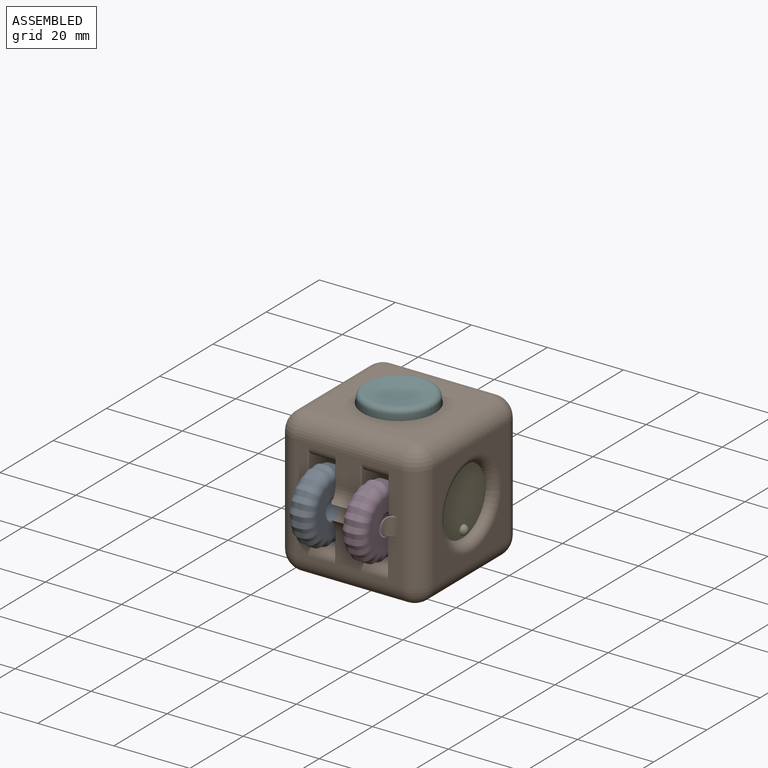
[diagram: assembled view]
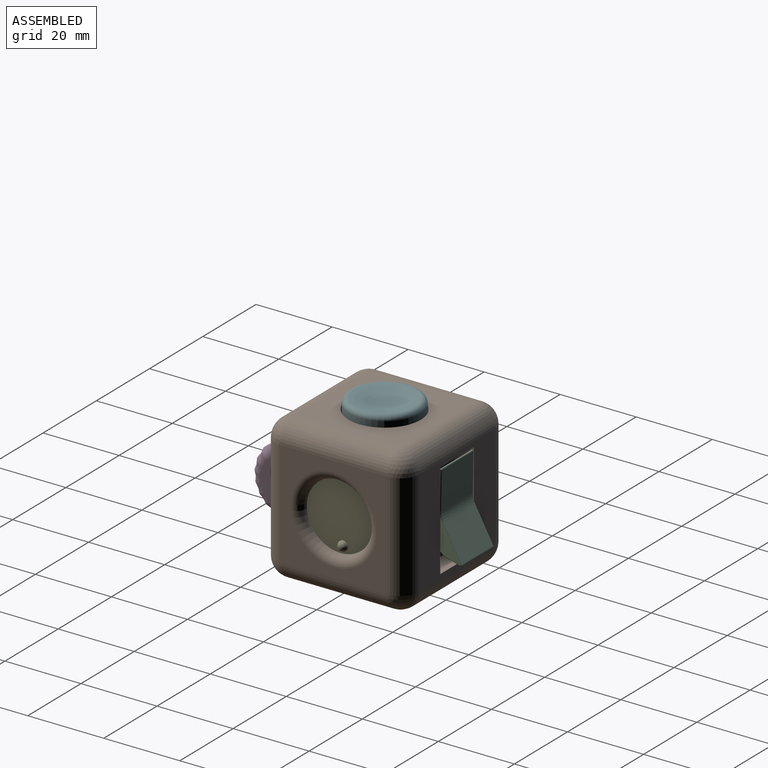
[diagram: assembled view, second angle]
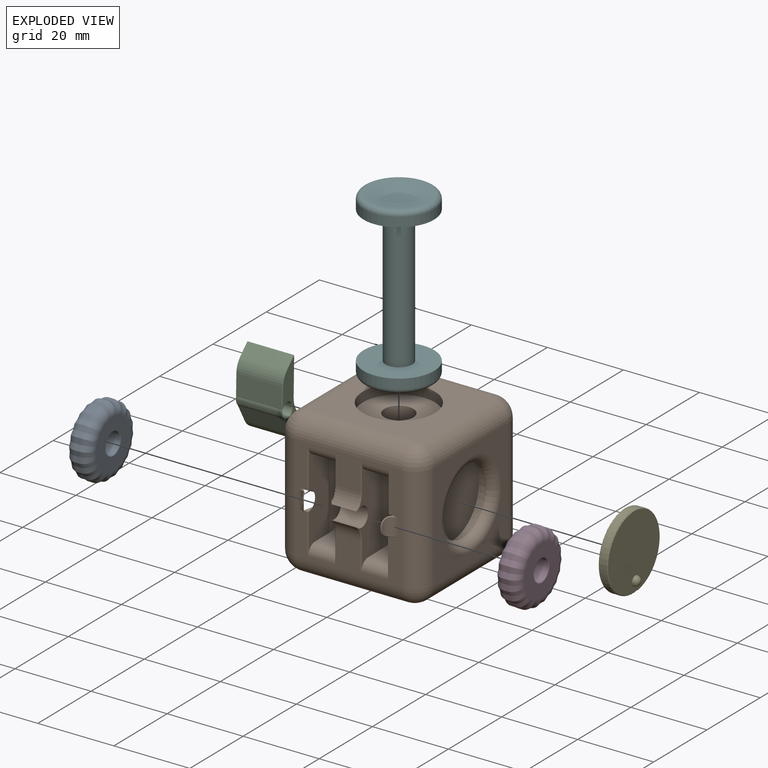
[diagram: exploded view]
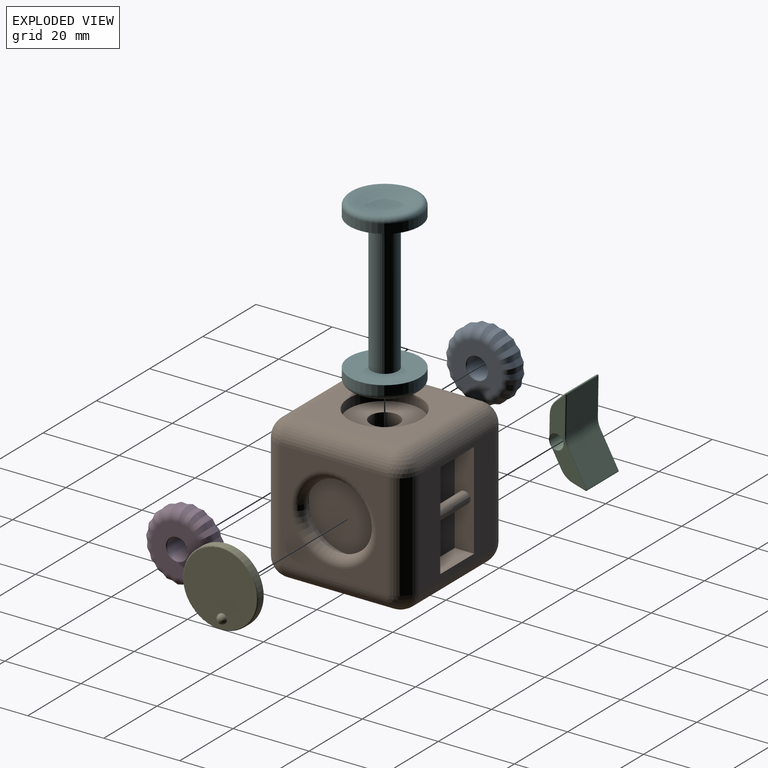
[diagram: exploded view, second angle]
ASSEMBLY  parts=6 mates=7
PART A: 125 faces, bbox 18.7x18.7x6.4 mm
  f0: plane 1.48x1.27mm, normal (0,1,0), area 1.9mm2, adj f1,f39,f69,f109
  f1: plane 1.41x1.27mm, normal (0.31,0.95,0), area 1.9mm2, adj f0,f2,f71,f111
  f2: plane 1.41x1.27mm, normal (-0.31,0.95,0), area 1.9mm2, adj f1,f3,f73,f113
  f3: plane 1.48x1.27mm, normal (0,1,0), area 1.9mm2, adj f2,f4,f75,f115
  f4: plane 1.27x1.2mm, normal (-0.59,0.81,0), area 1.9mm2, adj f3,f5,f77,f117
  f5: plane 1.41x1.27mm, normal (-0.31,0.95,0), area 1.9mm2, adj f4,f6,f79,f119
  f6: plane 1.27x1.2mm, normal (-0.81,0.59,0), area 1.9mm2, adj f5,f7,f81,f121
  f7: plane 1.27x1.2mm, normal (-0.59,0.81,0), area 1.9mm2, adj f6,f8,f83,f123
  f8: plane 1.41x1.27mm, normal (-0.95,0.31,0), area 1.9mm2, adj f7,f9,f84,f124
  f9: plane 1.27x1.2mm, normal (-0.81,0.59,0), area 1.9mm2, adj f8,f10,f82,f122
  f10: plane 1.48x1.27mm, normal (-1,0,0), area 1.9mm2, adj f9,f11,f80,f120
  f11: plane 1.41x1.27mm, normal (-0.95,0.31,0), area 1.9mm2, adj f10,f12,f78,f118
  f12: plane 1.41x1.27mm, normal (-0.95,-0.31,0), area 1.9mm2, adj f11,f13,f76,f116
  f13: plane 1.48x1.27mm, normal (-1,0,0), area 1.9mm2, adj f12,f14,f74,f114
  f14: plane 1.27x1.2mm, normal (-0.81,-0.59,0), area 1.9mm2, adj f13,f15,f72,f112
  f15: plane 1.41x1.27mm, normal (-0.95,-0.31,0), area 1.9mm2, adj f14,f16,f70,f110
  f16: plane 1.27x1.2mm, normal (-0.59,-0.81,0), area 1.9mm2, adj f15,f17,f68,f108
  f17: plane 1.27x1.2mm, normal (-0.81,-0.59,0), area 1.9mm2, adj f16,f18,f66,f106
  f18: plane 1.41x1.27mm, normal (-0.31,-0.95,0), area 1.9mm2, adj f17,f19,f64,f104
  f19: plane 1.27x1.2mm, normal (-0.59,-0.81,0), area 1.9mm2, adj f18,f20,f62,f102
  f20: plane 1.48x1.27mm, normal (0,-1,0), area 1.9mm2, adj f19,f21,f60,f100
  f21: plane 1.41x1.27mm, normal (-0.31,-0.95,0), area 1.9mm2, adj f20,f22,f58,f98
  f22: plane 1.41x1.27mm, normal (0.31,-0.95,0), area 1.9mm2, adj f21,f23,f56,f96
  f23: plane 1.48x1.27mm, normal (0,-1,0), area 1.9mm2, adj f22,f24,f54,f94
  f24: plane 1.27x1.2mm, normal (0.59,-0.81,0), area 1.9mm2, adj f23,f25,f52,f92
  f25: plane 1.41x1.27mm, normal (0.31,-0.95,0), area 1.9mm2, adj f24,f26,f50,f90
  f26: plane 1.27x1.2mm, normal (0.81,-0.59,0), area 1.9mm2, adj f25,f27,f48,f88
  f27: plane 1.27x1.2mm, normal (0.59,-0.81,0), area 1.9mm2, adj f26,f28,f46,f86
  f28: plane 1.41x1.27mm, normal (0.95,-0.31,0), area 1.9mm2, adj f27,f29,f45,f85
  f29: plane 1.27x1.2mm, normal (0.81,-0.59,0), area 1.9mm2, adj f28,f30,f47,f87
  f30: plane 1.48x1.27mm, normal (1,0,0), area 1.9mm2, adj f29,f31,f49,f89
  f31: plane 1.41x1.27mm, normal (0.95,-0.31,0), area 1.9mm2, adj f30,f32,f51,f91
  f32: plane 1.41x1.27mm, normal (0.95,0.31,0), area 1.9mm2, adj f31,f33,f53,f93
  f33: plane 1.48x1.27mm, normal (1,0,0), area 1.9mm2, adj f32,f34,f55,f95
  f34: plane 1.27x1.2mm, normal (0.81,0.59,0), area 1.9mm2, adj f33,f35,f57,f97
  f35: plane 1.41x1.27mm, normal (0.95,0.31,0), area 1.9mm2, adj f34,f36,f59,f99
  f36: plane 1.27x1.2mm, normal (0.59,0.81,0), area 1.9mm2, adj f35,f37,f61,f101
  f37: plane 1.27x1.2mm, normal (0.81,0.59,0), area 1.9mm2, adj f36,f38,f63,f103
  f38: plane 1.41x1.27mm, normal (0.31,0.95,0), area 1.9mm2, adj f37,f39,f65,f105
  f39: plane 1.27x1.2mm, normal (0.59,0.81,0), area 1.9mm2, adj f0,f38,f67,f107
  f40: cylinder r=2.74mm len=5.84mm, axis (0,0,-1), area 100.6mm2, adj f43,f44
  f41: plane 13.35x13.35mm, normal (0,0,1), area 106.1mm2, adj f44,f85,f86,f87,f88,f89,f90,f91
  f42: plane 13.35x13.35mm, normal (0,0,-1), area 106.1mm2, adj f43,f45,f46,f47,f48,f49,f50,f51
  f43: torus R=2.99mm, axis (0,0,1), area 7.1mm2, adj f40,f42
  f44: torus R=2.99mm, axis (0,0,1), area 7.1mm2, adj f40,f41
  f45: cylinder r=2.54mm len=3mm, axis (0.31,0.95,0), area 5.3mm2, adj f28,f42,f46,f47
  f46: cylinder r=2.54mm len=3.16mm, axis (0.81,0.59,0), area 5.3mm2, adj f27,f42,f45,f48
  f47: cylinder r=2.54mm len=3.16mm, axis (0.59,0.81,0), area 5.3mm2, adj f29,f42,f45,f49
  f48: cylinder r=2.54mm len=3.16mm, axis (0.59,0.81,0), area 5.3mm2, adj f26,f42,f46,f50
  f49: cylinder r=2.54mm len=2.54mm, axis (0,1,0), area 5.3mm2, adj f30,f42,f47,f51
  f50: cylinder r=2.54mm len=3mm, axis (0.95,0.31,0), area 5.3mm2, adj f25,f42,f48,f52
  f51: cylinder r=2.54mm len=3mm, axis (0.31,0.95,0), area 5.3mm2, adj f31,f42,f49,f53
  f52: cylinder r=2.54mm len=3.16mm, axis (0.81,0.59,0), area 5.3mm2, adj f24,f42,f50,f54
  f53: cylinder r=2.54mm len=3mm, axis (-0.31,0.95,0), area 5.3mm2, adj f32,f42,f51,f55
  f54: cylinder r=2.54mm len=2.54mm, axis (1,0,0), area 5.3mm2, adj f23,f42,f52,f56
  f55: cylinder r=2.54mm len=2.54mm, axis (0,1,0), area 5.3mm2, adj f33,f42,f53,f57
  f56: cylinder r=2.54mm len=3mm, axis (0.95,0.31,0), area 5.3mm2, adj f22,f42,f54,f58
  f57: cylinder r=2.54mm len=3.16mm, axis (-0.59,0.81,0), area 5.3mm2, adj f34,f42,f55,f59
  f58: cylinder r=2.54mm len=3mm, axis (0.95,-0.31,0), area 5.3mm2, adj f21,f42,f56,f60
  f59: cylinder r=2.54mm len=3mm, axis (-0.31,0.95,0), area 5.3mm2, adj f35,f42,f57,f61
  f60: cylinder r=2.54mm len=2.54mm, axis (1,0,0), area 5.3mm2, adj f20,f42,f58,f62
  f61: cylinder r=2.54mm len=3.16mm, axis (-0.81,0.59,0), area 5.3mm2, adj f36,f42,f59,f63
  f62: cylinder r=2.54mm len=3.16mm, axis (0.81,-0.59,0), area 5.3mm2, adj f19,f42,f60,f64
  f63: cylinder r=2.54mm len=3.16mm, axis (-0.59,0.81,0), area 5.3mm2, adj f37,f42,f61,f65
  f64: cylinder r=2.54mm len=3mm, axis (0.95,-0.31,0), area 5.3mm2, adj f18,f42,f62,f66
  f65: cylinder r=2.54mm len=3mm, axis (-0.95,0.31,0), area 5.3mm2, adj f38,f42,f63,f67
  f66: cylinder r=2.54mm len=3.16mm, axis (0.59,-0.81,0), area 5.3mm2, adj f17,f42,f64,f68
  f67: cylinder r=2.54mm len=3.16mm, axis (-0.81,0.59,0), area 5.3mm2, adj f39,f42,f65,f69
  f68: cylinder r=2.54mm len=3.16mm, axis (0.81,-0.59,0), area 5.3mm2, adj f16,f42,f66,f70
  f69: cylinder r=2.54mm len=2.54mm, axis (-1,0,0), area 5.3mm2, adj f0,f42,f67,f71
  f70: cylinder r=2.54mm len=3mm, axis (0.31,-0.95,0), area 5.3mm2, adj f15,f42,f68,f72
  f71: cylinder r=2.54mm len=3mm, axis (-0.95,0.31,0), area 5.3mm2, adj f1,f42,f69,f73
  f72: cylinder r=2.54mm len=3.16mm, axis (0.59,-0.81,0), area 5.3mm2, adj f14,f42,f70,f74
  f73: cylinder r=2.54mm len=3mm, axis (-0.95,-0.31,0), area 5.3mm2, adj f2,f42,f71,f75
  f74: cylinder r=2.54mm len=2.54mm, axis (0,-1,0), area 5.3mm2, adj f13,f42,f72,f76
  f75: cylinder r=2.54mm len=2.54mm, axis (-1,0,0), area 5.3mm2, adj f3,f42,f73,f77
  f76: cylinder r=2.54mm len=3mm, axis (0.31,-0.95,0), area 5.3mm2, adj f12,f42,f74,f78
  f77: cylinder r=2.54mm len=3.16mm, axis (-0.81,-0.59,0), area 5.3mm2, adj f4,f42,f75,f79
  f78: cylinder r=2.54mm len=3mm, axis (-0.31,-0.95,0), area 5.3mm2, adj f11,f42,f76,f80
  f79: cylinder r=2.54mm len=3mm, axis (-0.95,-0.31,0), area 5.3mm2, adj f5,f42,f77,f81
  f80: cylinder r=2.54mm len=2.54mm, axis (0,-1,0), area 5.3mm2, adj f10,f42,f78,f82
  f81: cylinder r=2.54mm len=3.16mm, axis (-0.59,-0.81,0), area 5.3mm2, adj f6,f42,f79,f83
  f82: cylinder r=2.54mm len=3.16mm, axis (-0.59,-0.81,0), area 5.3mm2, adj f9,f42,f80,f84
  f83: cylinder r=2.54mm len=3.16mm, axis (-0.81,-0.59,0), area 5.3mm2, adj f7,f42,f81,f84
  f84: cylinder r=2.54mm len=3mm, axis (-0.31,-0.95,0), area 5.3mm2, adj f8,f42,f82,f83
  f85: cylinder r=2.54mm len=3mm, axis (-0.31,-0.95,0), area 5.3mm2, adj f28,f41,f86,f87
  f86: cylinder r=2.54mm len=3.16mm, axis (-0.81,-0.59,0), area 5.3mm2, adj f27,f41,f85,f88
  f87: cylinder r=2.54mm len=3.16mm, axis (-0.59,-0.81,0), area 5.3mm2, adj f29,f41,f85,f89
  f88: cylinder r=2.54mm len=3.16mm, axis (-0.59,-0.81,0), area 5.3mm2, adj f26,f41,f86,f90
  f89: cylinder r=2.54mm len=2.54mm, axis (0,-1,0), area 5.3mm2, adj f30,f41,f87,f91
  f90: cylinder r=2.54mm len=3mm, axis (-0.95,-0.31,0), area 5.3mm2, adj f25,f41,f88,f92
  f91: cylinder r=2.54mm len=3mm, axis (-0.31,-0.95,0), area 5.3mm2, adj f31,f41,f89,f93
  f92: cylinder r=2.54mm len=3.16mm, axis (-0.81,-0.59,0), area 5.3mm2, adj f24,f41,f90,f94
  f93: cylinder r=2.54mm len=3mm, axis (0.31,-0.95,0), area 5.3mm2, adj f32,f41,f91,f95
  f94: cylinder r=2.54mm len=2.54mm, axis (-1,0,0), area 5.3mm2, adj f23,f41,f92,f96
  f95: cylinder r=2.54mm len=2.54mm, axis (0,-1,0), area 5.3mm2, adj f33,f41,f93,f97
  f96: cylinder r=2.54mm len=3mm, axis (-0.95,-0.31,0), area 5.3mm2, adj f22,f41,f94,f98
  f97: cylinder r=2.54mm len=3.16mm, axis (0.59,-0.81,0), area 5.3mm2, adj f34,f41,f95,f99
  f98: cylinder r=2.54mm len=3mm, axis (-0.95,0.31,0), area 5.3mm2, adj f21,f41,f96,f100
  f99: cylinder r=2.54mm len=3mm, axis (0.31,-0.95,0), area 5.3mm2, adj f35,f41,f97,f101
  f100: cylinder r=2.54mm len=2.54mm, axis (-1,0,0), area 5.3mm2, adj f20,f41,f98,f102
  f101: cylinder r=2.54mm len=3.16mm, axis (0.81,-0.59,0), area 5.3mm2, adj f36,f41,f99,f103
  f102: cylinder r=2.54mm len=3.16mm, axis (-0.81,0.59,0), area 5.3mm2, adj f19,f41,f100,f104
  f103: cylinder r=2.54mm len=3.16mm, axis (0.59,-0.81,0), area 5.3mm2, adj f37,f41,f101,f105
  f104: cylinder r=2.54mm len=3mm, axis (-0.95,0.31,0), area 5.3mm2, adj f18,f41,f102,f106
  f105: cylinder r=2.54mm len=3mm, axis (0.95,-0.31,0), area 5.3mm2, adj f38,f41,f103,f107
  f106: cylinder r=2.54mm len=3.16mm, axis (-0.59,0.81,0), area 5.3mm2, adj f17,f41,f104,f108
  f107: cylinder r=2.54mm len=3.16mm, axis (0.81,-0.59,0), area 5.3mm2, adj f39,f41,f105,f109
  f108: cylinder r=2.54mm len=3.16mm, axis (-0.81,0.59,0), area 5.3mm2, adj f16,f41,f106,f110
  f109: cylinder r=2.54mm len=2.54mm, axis (1,0,0), area 5.3mm2, adj f0,f41,f107,f111
  f110: cylinder r=2.54mm len=3mm, axis (-0.31,0.95,0), area 5.3mm2, adj f15,f41,f108,f112
  f111: cylinder r=2.54mm len=3mm, axis (0.95,-0.31,0), area 5.3mm2, adj f1,f41,f109,f113
  f112: cylinder r=2.54mm len=3.16mm, axis (-0.59,0.81,0), area 5.3mm2, adj f14,f41,f110,f114
  f113: cylinder r=2.54mm len=3mm, axis (0.95,0.31,0), area 5.3mm2, adj f2,f41,f111,f115
  f114: cylinder r=2.54mm len=2.54mm, axis (0,1,0), area 5.3mm2, adj f13,f41,f112,f116
  f115: cylinder r=2.54mm len=2.54mm, axis (1,0,0), area 5.3mm2, adj f3,f41,f113,f117
  f116: cylinder r=2.54mm len=3mm, axis (-0.31,0.95,0), area 5.3mm2, adj f12,f41,f114,f118
  f117: cylinder r=2.54mm len=3.16mm, axis (0.81,0.59,0), area 5.3mm2, adj f4,f41,f115,f119
  f118: cylinder r=2.54mm len=3mm, axis (0.31,0.95,0), area 5.3mm2, adj f11,f41,f116,f120
  f119: cylinder r=2.54mm len=3mm, axis (0.95,0.31,0), area 5.3mm2, adj f5,f41,f117,f121
  f120: cylinder r=2.54mm len=2.54mm, axis (0,1,0), area 5.3mm2, adj f10,f41,f118,f122
  f121: cylinder r=2.54mm len=3.16mm, axis (0.59,0.81,0), area 5.3mm2, adj f6,f41,f119,f123
  f122: cylinder r=2.54mm len=3.16mm, axis (0.59,0.81,0), area 5.3mm2, adj f9,f41,f120,f124
  f123: cylinder r=2.54mm len=3.16mm, axis (0.81,0.59,0), area 5.3mm2, adj f7,f41,f121,f124
  f124: cylinder r=2.54mm len=3mm, axis (0.31,0.95,0), area 5.3mm2, adj f8,f41,f122,f123
PART B: 91 faces, bbox 48.3x50.8x48.3 mm
  f0: plane 27.95x9.9mm, normal (-1,0,0), area 142.9mm2, adj f1,f2,f3,f4
  f1: cylinder r=5.08mm len=27.94mm, axis (0,1,0), area 219.9mm2, adj f0,f2,f5,f6,f7,f8
  f2: bspline ~30.1x21.3mm, area 120.8mm2, adj f0,f1,f3,f5,f9
  f3: cylinder r=5.08mm len=27.94mm, axis (0,-1,0), area 219.9mm2, adj f0,f2,f5,f10,f11,f12
  f4: cylinder r=5.08mm len=27.94mm, axis (0,0,1), area 223mm2, adj f0,f6,f12,f13
  f5: plane 27.96x9.91mm, normal (-1,0,0), area 142.9mm2, adj f1,f2,f3,f14
  f6: sphere r=5.08mm, area 40.5mm2, adj f1,f4,f15
  f7: plane 27.94x27.94mm, normal (0,0,1), area 495.6mm2, adj f1,f15,f16,f17,f18
  f8: sphere r=5.08mm, area 40.5mm2, adj f1,f14,f17
  f9: bspline ~27.04x18.21mm, area 339.7mm2, adj f2,f19
  f10: sphere r=5.08mm, area 55.3mm2, adj f3,f14,f20
  f11: plane 27.94x27.94mm, normal (0,0,-1), area 495.6mm2, adj f3,f20,f21,f22,f23
  f12: sphere r=5.08mm, area 40.5mm2, adj f3,f4,f22
  f13: plane 38.1x38.1mm, normal (0,-1,0), area 296.8mm2, adj f4,f15,f22,f24,f25,f26,f27,f28
  f14: cylinder r=5.08mm len=27.94mm, axis (0,0,-1), area 223mm2, adj f5,f8,f10,f45
  f15: cylinder r=5.08mm len=27.94mm, axis (-1,0,0), area 223mm2, adj f6,f7,f13,f46
  f16: cylinder r=9.53mm len=19.05mm, axis (0,0,1), area 152mm2, adj f7,f47
  f17: cylinder r=5.08mm len=27.94mm, axis (1,0,0), area 223mm2, adj f7,f8,f45,f48
  f18: cylinder r=5.08mm len=27.94mm, axis (0,-1,0), area 223mm2, adj f7,f46,f48,f49
  f19: plane 14.94x6.11mm, normal (-1,0,0), area 67.9mm2, adj f9
  f20: cylinder r=5.08mm len=27.94mm, axis (-1,0,0), area 223mm2, adj f10,f11,f45,f50
  f21: cylinder r=9.53mm len=19.05mm, axis (0,0,-1), area 152mm2, adj f11,f51
  f22: cylinder r=5.08mm len=27.94mm, axis (1,0,0), area 223mm2, adj f11,f12,f13,f52
  f23: cylinder r=5.08mm len=27.94mm, axis (0,1,0), area 223mm2, adj f11,f49,f50,f52
  f24: cylinder r=5.08mm len=27.94mm, axis (0,0,-1), area 223mm2, adj f13,f46,f49,f52
  f25: cylinder r=2.54mm len=7.49mm, axis (1,0,0), area 28.2mm2, adj f13,f26,f44,f53,f54,f55
  f26: cylinder r=0.25mm len=7.34mm, axis (0,0,-1), area 2.7mm2, adj f13,f25,f53,f56
  f27: cylinder r=5.08mm len=6.48mm, axis (1,0,0), area 27.7mm2, adj f13,f56,f57,f58
  f28: cylinder r=0.25mm len=7.34mm, axis (0,0,1), area 2.7mm2, adj f13,f29,f58,f59
  f29: cylinder r=2.54mm len=7.49mm, axis (1,0,0), area 28.2mm2, adj f13,f28,f30,f34,f59,f60
  f30: cylinder r=0.25mm len=10.49mm, axis (0,0,-1), area 4mm2, adj f13,f29,f31,f34
  f31: cylinder r=2.54mm len=5.08mm, axis (1,0,0), area 15.5mm2, adj f13,f30,f32,f34
  f32: bspline ~5.11x3.15mm, area 3.5mm2, adj f13,f31,f33
  f33: cylinder r=2.54mm len=4.54mm, axis (0,0,-1), area 8.5mm2, adj f13,f32
  f34: plane 24.93x7.62mm, normal (-1,0,0), area 149.8mm2, adj f13,f29,f30,f31,f35,f60,f61,f62
  f35: cylinder r=2.54mm len=7.24mm, axis (-1,0,0), area 28mm2, adj f13,f34,f36,f59,f62
  f36: cylinder r=0.25mm len=7.34mm, axis (0,0,1), area 2.7mm2, adj f13,f35,f59,f63
  f37: cylinder r=5.08mm len=6.48mm, axis (1,0,0), area 27.7mm2, adj f13,f57,f63,f64
  f38: cylinder r=0.25mm len=7.34mm, axis (0,0,-1), area 2.7mm2, adj f13,f39,f53,f64
  f39: cylinder r=2.54mm len=7.49mm, axis (-1,0,0), area 28.2mm2, adj f13,f38,f40,f53,f54,f65
  f40: cylinder r=0.25mm len=10.49mm, axis (0,0,1), area 4mm2, adj f13,f39,f41,f54
  f41: cylinder r=2.54mm len=5.08mm, axis (1,0,0), area 16.5mm2, adj f13,f40,f42,f44,f54
  f42: bspline ~5.11x3.15mm, area 3.5mm2, adj f13,f41,f43
  f43: cylinder r=2.54mm len=4.54mm, axis (0,0,1), area 8.5mm2, adj f13,f42
  f44: cylinder r=0.25mm len=10.49mm, axis (0,0,1), area 4mm2, adj f13,f25,f41,f54
  f45: plane 27.94x27.94mm, normal (0,1,0), area 458.1mm2, adj f14,f17,f20,f66,f67,f68,f69,f70
  f46: sphere r=5.08mm, area 40.5mm2, adj f15,f18,f24
  f47: plane 19.05x19.05mm, normal (0,0,1), area 239.4mm2, adj f16,f71
  f48: sphere r=5.08mm, area 25.8mm2, adj f17,f18,f66
  f49: plane 27.94x27.94mm, normal (1,0,0), area 379.1mm2, adj f18,f23,f24,f66,f72
  f50: sphere r=5.08mm, area 25.8mm2, adj f20,f23,f66
  f51: plane 19.05x19.05mm, normal (0,0,-1), area 239.4mm2, adj f21,f71
  f52: sphere r=5.08mm, area 40.5mm2, adj f22,f23,f24
  f53: plane 23.82x8.26mm, normal (-1,0,0), area 147mm2, adj f25,f26,f38,f39,f55,f56,f64,f65
  f54: plane 23.82x7.37mm, normal (1,0,0), area 147.4mm2, adj f25,f39,f40,f41,f44,f55,f65,f75
  f55: plane 6.99x5.08mm, normal (0,0,-1), area 35.5mm2, adj f25,f53,f54,f76
  f56: torus R=5.33mm, axis (-1,0,0), area 1.5mm2, adj f26,f27,f53,f77
  f57: cylinder r=2.54mm len=7.24mm, axis (1,0,0), area 83.7mm2, adj f27,f37,f58,f59,f63,f73,f77,f78
  f58: torus R=5.33mm, axis (-1,0,0), area 1.6mm2, adj f27,f28,f57,f59
  f59: plane 23.82x8.51mm, normal (1,0,0), area 149.5mm2, adj f28,f29,f35,f36,f57,f58,f60,f62
  f60: plane 6.99x5.08mm, normal (0,0,-1), area 35.5mm2, adj f29,f34,f59,f80
  f61: cylinder r=2.54mm len=20.96mm, axis (0,0,1), area 73.5mm2, adj f34,f80,f81,f82
  f62: plane 6.99x5.08mm, normal (0,0,1), area 35.5mm2, adj f34,f35,f59,f82
  f63: torus R=5.33mm, axis (-1,0,0), area 1.6mm2, adj f36,f37,f57,f59
  f64: torus R=5.33mm, axis (-1,0,0), area 1.5mm2, adj f37,f38,f53,f78
  f65: plane 6.99x5.08mm, normal (0,0,1), area 35.5mm2, adj f39,f53,f54,f83
  f66: cylinder r=5.08mm len=27.94mm, axis (0,0,1), area 223mm2, adj f45,f48,f49,f50
  f67: plane 25.4x5.08mm, normal (1,0,0), area 121.1mm2, adj f45,f68,f70,f84,f85
  f68: plane 12.7x5.08mm, normal (0,0,1), area 64.5mm2, adj f45,f67,f69,f85
  f69: plane 25.4x5.08mm, normal (-1,0,0), area 121.1mm2, adj f45,f68,f70,f84,f85
  f70: plane 12.7x5.08mm, normal (0,0,-1), area 64.5mm2, adj f45,f67,f69,f85
  f71: cylinder r=3.81mm len=33.02mm, axis (0,0,-1), area 790.5mm2, adj f47,f51
  f72: torus R=11.31mm, axis (1,0,0), area 227.3mm2, adj f49,f86
  f73: torus R=2.79mm, axis (-1,0,0), area 3.8mm2, adj f53,f57,f77,f78
  f74: cylinder r=2.54mm len=20.96mm, axis (0,0,1), area 73.5mm2, adj f53,f76,f83,f87
  f75: cylinder r=2.54mm len=20.96mm, axis (0,0,-1), area 73.5mm2, adj f54,f76,f83,f87
  f76: cylinder r=2.54mm len=6.99mm, axis (-1,0,0), area 17.7mm2, adj f55,f74,f75,f87
  f77: bspline ~1.26x0.89mm, area 0.2mm2, adj f56,f57,f73
  f78: bspline ~1.26x0.89mm, area 0.2mm2, adj f57,f64,f73
  f79: cylinder r=2.54mm len=20.96mm, axis (0,0,-1), area 73.5mm2, adj f59,f80,f81,f82
  f80: cylinder r=2.54mm len=6.99mm, axis (-1,0,0), area 17.7mm2, adj f60,f61,f79,f81
  f81: plane 15.88x1.91mm, normal (0,-1,0), area 30.2mm2, adj f61,f79,f80,f82
  f82: cylinder r=2.54mm len=6.99mm, axis (1,0,0), area 17.7mm2, adj f61,f62,f79,f81
  f83: cylinder r=2.54mm len=6.99mm, axis (1,0,0), area 17.7mm2, adj f65,f74,f75,f87
  f84: cylinder r=1.59mm len=12.7mm, axis (1,0,0), area 126.7mm2, adj f67,f69
  f85: plane 25.4x12.7mm, normal (0,1,0), area 322.6mm2, adj f67,f68,f69,f70
  f86: torus R=9.03mm, axis (-1,0,0), area 23.8mm2, adj f72,f88
  f87: plane 15.88x1.91mm, normal (0,-1,0), area 30.2mm2, adj f74,f75,f76,f83
  f88: plane 20.32x20.32mm, normal (-1,0,0), area 67.9mm2, adj f86,f89
  f89: cylinder r=10.16mm len=20.32mm, axis (1,0,0), area 162.1mm2, adj f88,f90
  f90: plane 20.32x20.32mm, normal (1,0,0), area 324.3mm2, adj f89
PART C: 50 faces, bbox 12.3x21.7x10.5 mm
  f0: plane 21.18x9.54mm, normal (1,0,0), area 63.8mm2, adj f13,f15,f16,f17,f18,f19,f20,f21
  f1: plane 21.18x9.54mm, normal (-1,0,0), area 63.8mm2, adj f23,f25,f26,f27,f28,f29,f30,f31
  f2: plane 11.79x9.75mm, normal (0,0,1), area 114.9mm2, adj f11,f20,f29,f38
  f3: plane 11.79x5.39mm, normal (0,0,-1), area 63.5mm2, adj f7,f16,f25,f48
  f4: cylinder r=1.84mm len=11.79mm, axis (1,0,0), area 14.5mm2, adj f7,f8,f12,f24
  f5: cylinder r=1.79mm len=11.79mm, axis (-1,0,0), area 132.4mm2, adj f13,f23
  f6: plane 11.79x2.45mm, normal (0,-0.71,-0.71), area 40.8mm2, adj f18,f27,f41,f48
  f7: cylinder r=1.84mm len=11.79mm, axis (-1,0,0), area 14.5mm2, adj f3,f4,f14,f22
  f8: plane 11.79x4.66mm, normal (0,0.5,-0.87), area 63.5mm2, adj f4,f15,f26,f45
  f9: plane 11.79x8.44mm, normal (0,-0.5,0.87), area 114.9mm2, adj f11,f19,f30,f32
  f10: plane 11.79x3.34mm, normal (0,0.97,-0.26), area 40.8mm2, adj f17,f28,f35,f45
  f11: cylinder r=5.08mm len=11.79mm, axis (-1,0,0), area 31.4mm2, adj f2,f9,f21,f31
  f12: torus R=1.59mm, axis (1,0,0), area 0.3mm2, adj f4,f13,f14,f15
  f13: torus R=2.04mm, axis (1,0,0), area 4.3mm2, adj f0,f5,f12,f14,f15,f16
  f14: torus R=1.59mm, axis (1,0,0), area 0.3mm2, adj f7,f12,f13,f16
  f15: cylinder r=0.25mm len=4.81mm, axis (0,-0.87,-0.5), area 2.1mm2, adj f0,f8,f12,f13,f44
  f16: cylinder r=0.25mm len=5.41mm, axis (0,1,0), area 2.1mm2, adj f0,f3,f13,f14,f47
  f17: cylinder r=0.25mm len=3.41mm, axis (0,-0.26,-0.97), area 1.4mm2, adj f0,f10,f37,f44
  f18: cylinder r=0.25mm len=2.63mm, axis (0,0.71,-0.71), area 1.4mm2, adj f0,f6,f40,f47
  f19: cylinder r=0.25mm len=8.57mm, axis (0,0.87,0.5), area 3.9mm2, adj f0,f9,f21,f36
  f20: cylinder r=0.25mm len=9.75mm, axis (0,-1,0), area 3.9mm2, adj f0,f2,f21,f39
  f21: torus R=5.33mm, axis (1,0,0), area 1.1mm2, adj f0,f11,f19,f20
  f22: torus R=1.59mm, axis (1,0,0), area 0.3mm2, adj f7,f23,f24,f25
  f23: torus R=2.04mm, axis (1,0,0), area 4.3mm2, adj f1,f5,f22,f24,f25,f26
  f24: torus R=1.59mm, axis (1,0,0), area 0.3mm2, adj f4,f22,f23,f26
  f25: cylinder r=0.25mm len=5.41mm, axis (0,-1,0), area 2.1mm2, adj f1,f3,f22,f23,f49
  f26: cylinder r=0.25mm len=4.81mm, axis (0,0.87,0.5), area 2.1mm2, adj f1,f8,f23,f24,f46
  f27: cylinder r=0.25mm len=2.63mm, axis (0,0.71,-0.71), area 1.4mm2, adj f1,f6,f43,f49
  f28: cylinder r=0.25mm len=3.41mm, axis (0,0.26,0.97), area 1.4mm2, adj f1,f10,f34,f46
  f29: cylinder r=0.25mm len=9.75mm, axis (0,1,0), area 3.9mm2, adj f1,f2,f31,f42
  f30: cylinder r=0.25mm len=8.57mm, axis (0,-0.87,-0.5), area 3.9mm2, adj f1,f9,f31,f33
  f31: torus R=5.33mm, axis (1,0,0), area 1.1mm2, adj f1,f11,f29,f30
  f32: cylinder r=5.08mm len=11.79mm, axis (-1,0,0), area 2.2mm2, adj f9,f33,f35,f36
  f33: torus R=4.83mm, axis (1,0,0), area 0.1mm2, adj f1,f30,f32,f34
  f34: sphere r=0.25mm, area 0.1mm2, adj f28,f33,f35
  f35: cylinder r=0.25mm len=11.79mm, axis (-1,0,0), area 6.9mm2, adj f10,f32,f34,f37
  f36: torus R=4.83mm, axis (1,0,0), area 0.1mm2, adj f0,f19,f32,f37
  f37: sphere r=0.25mm, area 0.1mm2, adj f17,f35,f36
  f38: cylinder r=5.08mm len=11.79mm, axis (1,0,0), area 2.2mm2, adj f2,f39,f41,f42
  f39: torus R=4.83mm, axis (1,0,0), area 0.1mm2, adj f0,f20,f38,f40
  f40: sphere r=0.25mm, area 0.1mm2, adj f18,f39,f41
  f41: cylinder r=0.25mm len=11.79mm, axis (1,0,0), area 6.9mm2, adj f6,f38,f40,f43
  f42: torus R=4.83mm, axis (1,0,0), area 0.1mm2, adj f1,f29,f38,f43
  f43: sphere r=0.25mm, area 0.1mm2, adj f27,f41,f42
  f44: torus R=4.83mm, axis (1,0,0), area 1.6mm2, adj f0,f15,f17,f45
  f45: cylinder r=5.08mm len=11.79mm, axis (-1,0,0), area 47mm2, adj f8,f10,f44,f46
  f46: torus R=4.83mm, axis (1,0,0), area 1.6mm2, adj f1,f26,f28,f45
  f47: torus R=4.83mm, axis (1,0,0), area 1.6mm2, adj f0,f16,f18,f48
  f48: cylinder r=5.08mm len=11.79mm, axis (1,0,0), area 47mm2, adj f3,f6,f47,f49
  f49: torus R=4.83mm, axis (1,0,0), area 1.6mm2, adj f1,f25,f27,f48
PART D: same geometry as A
PART E: 6 faces, bbox 21.3x21.3x3.7 mm
  f0: cylinder r=9.86mm len=19.72mm, axis (0,0,-1), area 119.7mm2, adj f3,f4
  f1: plane 19.21x19.21mm, normal (0,0,-1), area 289.9mm2, adj f4
  f2: plane 19.21x19.21mm, normal (0,0,1), area 284.8mm2, adj f3,f5
  f3: torus R=9.61mm, axis (0,0,1), area 24.5mm2, adj f0,f2
  f4: torus R=9.61mm, axis (0,0,1), area 24.5mm2, adj f0,f1
  f5: sphere r=1.27mm, area 10.1mm2, adj f2
PART F: 13 faces, bbox 20.1x20.1x43.5 mm
  f0: cylinder r=3.51mm len=35.96mm, axis (0,0,-1), area 793.1mm2, adj f3,f8
  f1: plane 0.02x0.02mm, normal (0,0,1), area 0mm2, adj f5
  f2: cylinder r=9.27mm len=18.54mm, axis (0,0,-1), area 145.2mm2, adj f3,f6
  f3: plane 18.54x18.54mm, normal (0,0,-1), area 231.3mm2, adj f0,f2
  f4: torus R=9.05mm, axis (0,0,1), area 100.5mm2, adj f5,f6
  f5: torus R=0.01mm, axis (0,0,-1), area 98.5mm2, adj f1,f4
  f6: torus R=8mm, axis (0,0,-1), area 116.2mm2, adj f2,f4
  f7: cylinder r=9.27mm len=18.54mm, axis (0,0,1), area 145.2mm2, adj f8,f11
  f8: plane 18.54x18.54mm, normal (0,0,1), area 231.3mm2, adj f0,f7
  f9: plane 0.02x0.02mm, normal (0,0,-1), area 0mm2, adj f12
  f10: torus R=9.05mm, axis (0,0,-1), area 100.5mm2, adj f11,f12
  f11: torus R=8mm, axis (0,0,-1), area 116.2mm2, adj f7,f10
  f12: torus R=0.01mm, axis (0,0,-1), area 98.5mm2, adj f9,f10
PLACE A rot(axis=(-0.64,-0.42,0.64),134.8deg) t=(-22.3,-14.11,33.48)mm
PLACE B t=(-18.49,4.94,14.43)mm fixed
PLACE C rot(axis=(-1,0,0),91deg) t=(-18.49,19.01,33.52)mm
PLACE D rot(axis=(0.71,-0.03,-0.71),177.1deg) t=(-8.33,-14.11,33.48)mm
PLACE E rot(axis=(-0.56,0.61,-0.56),117.4deg) t=(-4.52,4.94,33.48)mm
PLACE F rot(axis=(0,0,1),0.1deg) t=(-18.49,4.94,12.96)mm
MATE planar A.f40 <-> B.f25  axis (1,0,0) through (-25.48,-14.11,33.48)mm
MATE cylindrical D.f40 <-> B.f31  axis (1,0,0) through (-11.51,-14.11,33.48)mm
MATE revolute F.f0 <-> B.f71  axis (0,0,-1) through (-18.49,4.94,33.48)mm
MATE revolute C.f5 <-> B.f84  axis (-1,0,0) through (-18.49,21.45,33.48)mm
MATE planar D.f40 <-> B.f25  axis (1,0,0) through (-11.51,-14.11,33.48)mm
MATE revolute E.f0 <-> B.f72  axis (-1,0,0) through (-4.52,4.94,33.48)mm
MATE cylindrical A.f40 <-> B.f31  axis (1,0,0) through (-25.48,-14.11,33.48)mm
